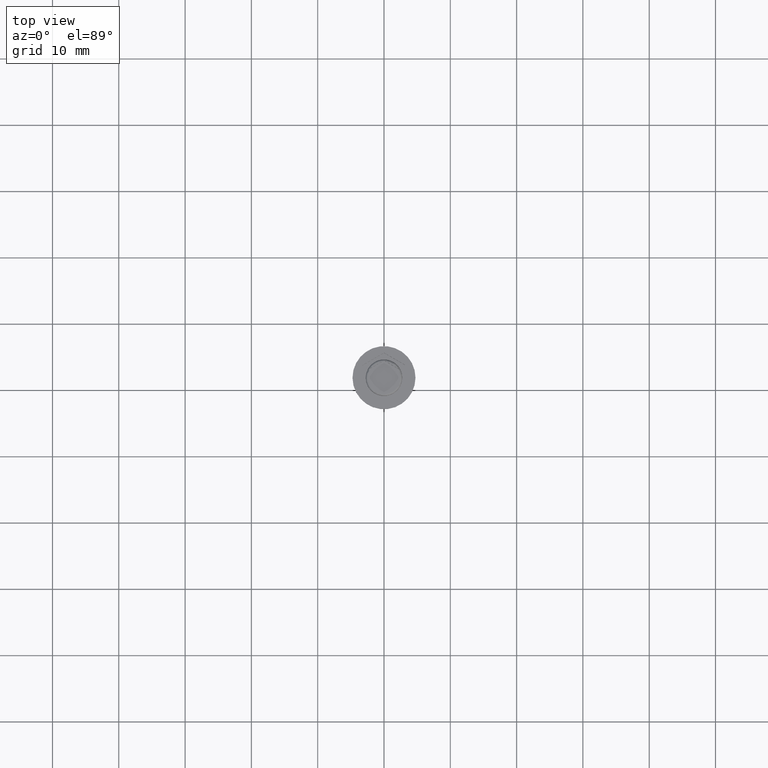
[diagram: clean part render]
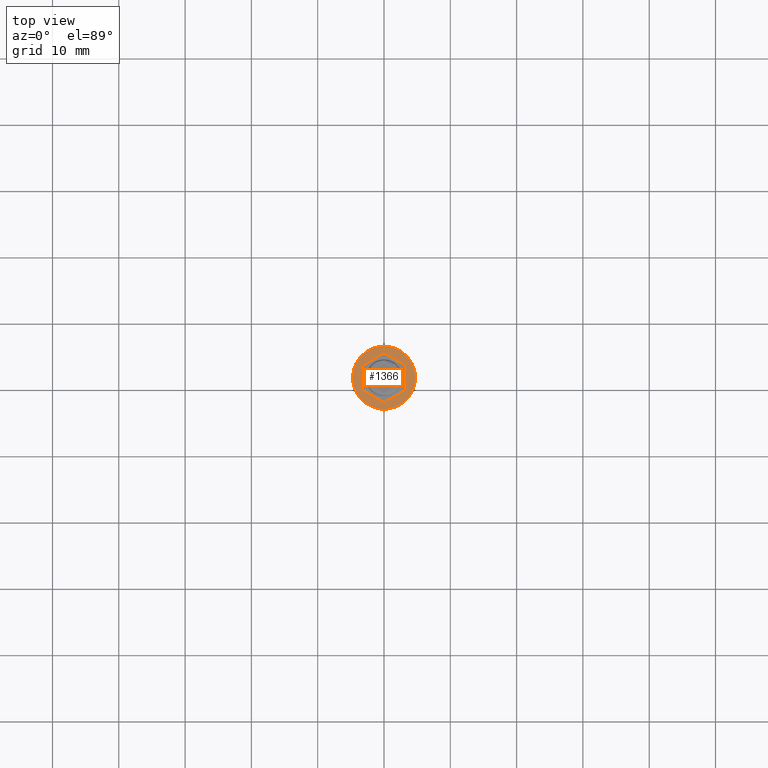
[diagram: same view with one face highlighted and labeled with its STEP entity id]
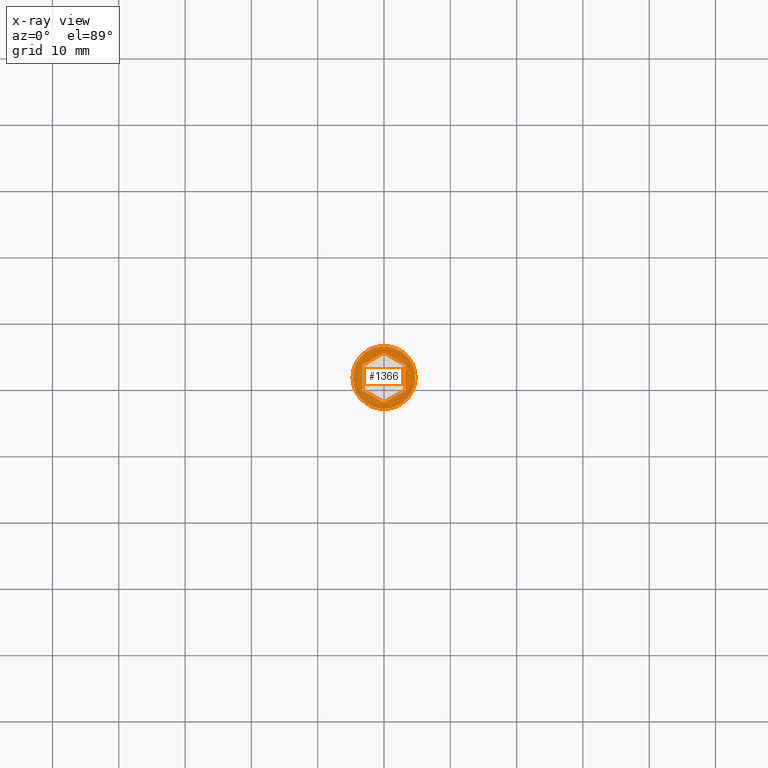
[diagram: x-ray of the same camera — body ghosted, the highlighted face saturated]
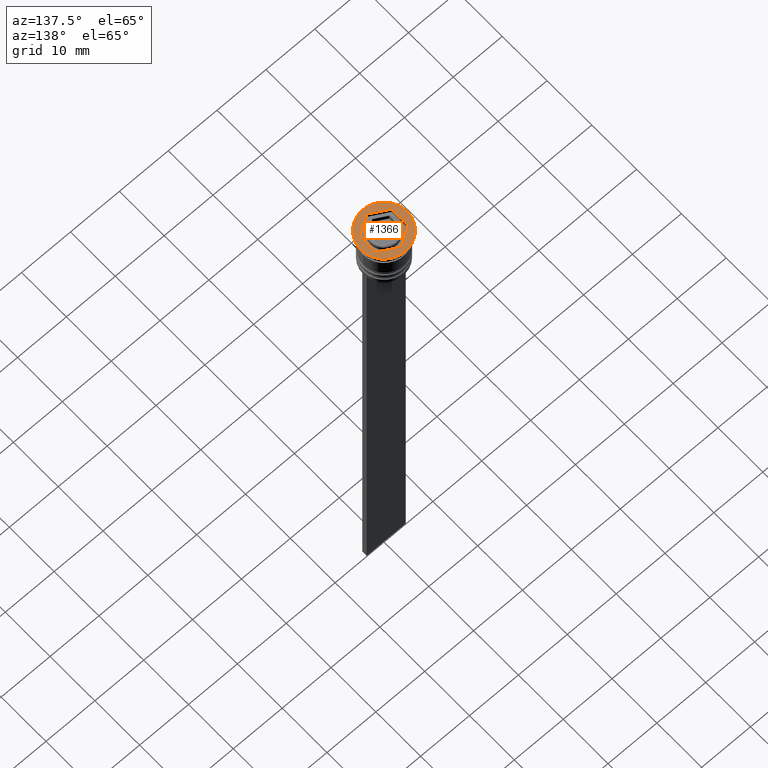
[diagram: same view with one face highlighted and labeled with its STEP entity id]
A machine part, top view. The second image highlights one B-rep face of the part: STEP entity #1366.
The next image is the same camera in x-ray: the body ghosted, the highlighted face saturated — about 0% of this face is hidden behind the body in this view.
A second angle (auxiliary view) of the same face is appended — the face is thin or edge-on in the first view.
In plain terms, the highlighted planar face has unit normal (0, -0, 1).
Its self-contained STEP definition (entity closure, byte-faithful):
#9 = CARTESIAN_POINT ( 'NONE',  ( 3.250000000000000444, -1.876388374866283515, 0.000000000000000000 ) ) ;
#13 = CARTESIAN_POINT ( 'NONE',  ( -4.750000000000000000, 5.817072295949927426E-16, 0.000000000000000000 ) ) ;
#50 = ORIENTED_EDGE ( 'NONE', *, *, #1515, .F. ) ;
#58 = ORIENTED_EDGE ( 'NONE', *, *, #1827, .T. ) ;
#105 = VECTOR ( 'NONE', #1931, 1000.000000000000114 ) ;
#120 = ORIENTED_EDGE ( 'NONE', *, *, #1431, .F. ) ;
#139 = EDGE_LOOP ( 'NONE', ( #790, #58 ) ) ;
#144 = EDGE_CURVE ( 'NONE', #2367, #193, #1368, .T. ) ;
#173 = VERTEX_POINT ( 'NONE', #2329 ) ;
#178 = EDGE_CURVE ( 'NONE', #605, #977, #969, .T. ) ;
#193 = VERTEX_POINT ( 'NONE', #9 ) ;
#262 = ORIENTED_EDGE ( 'NONE', *, *, #617, .F. ) ;
#326 = AXIS2_PLACEMENT_3D ( 'NONE', #2352, #906, #733 ) ;
#327 = VERTEX_POINT ( 'NONE', #1181 ) ;
#350 = DIRECTION ( 'NONE',  ( 0.8660254037844385966, 0.5000000000000001110, 0.000000000000000000 ) ) ;
#411 = EDGE_LOOP ( 'NONE', ( #50, #1134, #1137, #262, #1971, #120 ) ) ;
#443 = EDGE_CURVE ( 'NONE', #193, #919, #1704, .T. ) ;
#605 = VERTEX_POINT ( 'NONE', #2152 ) ;
#617 = EDGE_CURVE ( 'NONE', #1348, #2367, #1469, .T. ) ;
#680 = CARTESIAN_POINT ( 'NONE',  ( 0.000000000000000000, 0.000000000000000000, 0.000000000000000000 ) ) ;
#705 = DIRECTION ( 'NONE',  ( 1.000000000000000000, 0.000000000000000000, 0.000000000000000000 ) ) ;
#733 = DIRECTION ( 'NONE',  ( 1.000000000000000000, 0.000000000000000000, 0.000000000000000000 ) ) ;
#790 = ORIENTED_EDGE ( 'NONE', *, *, #178, .T. ) ;
#808 = VECTOR ( 'NONE', #1203, 1000.000000000000000 ) ;
#826 = EDGE_CURVE ( 'NONE', #173, #1348, #1600, .T. ) ;
#829 = AXIS2_PLACEMENT_3D ( 'NONE', #2371, #2385, #1846 ) ;
#906 = DIRECTION ( 'NONE',  ( -0.000000000000000000, -0.000000000000000000, 1.000000000000000000 ) ) ;
#919 = VERTEX_POINT ( 'NONE', #1474 ) ;
#962 = DIRECTION ( 'NONE',  ( -0.8660254037844388186, 0.4999999999999997224, 0.000000000000000000 ) ) ;
#964 = DIRECTION ( 'NONE',  ( 2.311253228826398661E-16, 1.000000000000000000, 0.000000000000000000 ) ) ;
#969 = CIRCLE ( 'NONE', #1259, 4.750000000000000000 ) ;
#977 = VERTEX_POINT ( 'NONE', #13 ) ;
#985 = CARTESIAN_POINT ( 'NONE',  ( 3.250000000000000444, -1.876388374866283515, 0.000000000000000000 ) ) ;
#996 = LINE ( 'NONE', #1887, #2216 ) ;
#998 = CIRCLE ( 'NONE', #326, 4.750000000000000000 ) ;
#1008 = LINE ( 'NONE', #2264, #1446 ) ;
#1134 = ORIENTED_EDGE ( 'NONE', *, *, #443, .F. ) ;
#1137 = ORIENTED_EDGE ( 'NONE', *, *, #144, .F. ) ;
#1181 = CARTESIAN_POINT ( 'NONE',  ( 0.000000000000000000, 3.752776749732567030, 0.000000000000000000 ) ) ;
#1203 = DIRECTION ( 'NONE',  ( 0.000000000000000000, -1.000000000000000000, 0.000000000000000000 ) ) ;
#1240 = CARTESIAN_POINT ( 'NONE',  ( -3.250000000000000444, -1.876388374866284625, 0.000000000000000000 ) ) ;
#1259 = AXIS2_PLACEMENT_3D ( 'NONE', #680, #2356, #705 ) ;
#1262 = FACE_BOUND ( 'NONE', #411, .T. ) ;
#1320 = DIRECTION ( 'NONE',  ( -0.8660254037844385966, -0.5000000000000001110, 0.000000000000000000 ) ) ;
#1340 = VECTOR ( 'NONE', #964, 1000.000000000000000 ) ;
#1348 = VERTEX_POINT ( 'NONE', #1830 ) ;
#1366 = ADVANCED_FACE ( 'NONE', ( #1262, #2002 ), #2198, .T. ) ;
#1368 = LINE ( 'NONE', #2106, #1375 ) ;
#1375 = VECTOR ( 'NONE', #350, 1000.000000000000000 ) ;
#1406 = CARTESIAN_POINT ( 'NONE',  ( -3.250000000000000444, 1.876388374866282627, 0.000000000000000000 ) ) ;
#1431 = EDGE_CURVE ( 'NONE', #327, #173, #1008, .T. ) ;
#1446 = VECTOR ( 'NONE', #1320, 1000.000000000000000 ) ;
#1469 = LINE ( 'NONE', #1240, #105 ) ;
#1474 = CARTESIAN_POINT ( 'NONE',  ( 3.250000000000001332, 1.876388374866284181, 0.000000000000000000 ) ) ;
#1515 = EDGE_CURVE ( 'NONE', #919, #327, #996, .T. ) ;
#1600 = LINE ( 'NONE', #1406, #808 ) ;
#1704 = LINE ( 'NONE', #985, #1340 ) ;
#1827 = EDGE_CURVE ( 'NONE', #977, #605, #998, .T. ) ;
#1830 = CARTESIAN_POINT ( 'NONE',  ( -3.250000000000000444, -1.876388374866284625, 0.000000000000000000 ) ) ;
#1846 = DIRECTION ( 'NONE',  ( 1.000000000000000000, 0.000000000000000000, 0.000000000000000000 ) ) ;
#1864 = CARTESIAN_POINT ( 'NONE',  ( -2.112280747572084180E-16, -3.752776749732567918, 0.000000000000000000 ) ) ;
#1887 = CARTESIAN_POINT ( 'NONE',  ( 3.250000000000001332, 1.876388374866284181, 0.000000000000000000 ) ) ;
#1931 = DIRECTION ( 'NONE',  ( 0.8660254037844387076, -0.4999999999999998890, 0.000000000000000000 ) ) ;
#1971 = ORIENTED_EDGE ( 'NONE', *, *, #826, .F. ) ;
#2002 = FACE_OUTER_BOUND ( 'NONE', #139, .T. ) ;
#2106 = CARTESIAN_POINT ( 'NONE',  ( -2.112280747572084180E-16, -3.752776749732567918, 0.000000000000000000 ) ) ;
#2152 = CARTESIAN_POINT ( 'NONE',  ( 4.750000000000000000, 0.000000000000000000, 0.000000000000000000 ) ) ;
#2198 = PLANE ( 'NONE',  #829 ) ;
#2216 = VECTOR ( 'NONE', #962, 1000.000000000000000 ) ;
#2264 = CARTESIAN_POINT ( 'NONE',  ( 0.000000000000000000, 3.752776749732567030, 0.000000000000000000 ) ) ;
#2329 = CARTESIAN_POINT ( 'NONE',  ( -3.250000000000000444, 1.876388374866282627, 0.000000000000000000 ) ) ;
#2352 = CARTESIAN_POINT ( 'NONE',  ( 0.000000000000000000, 0.000000000000000000, 0.000000000000000000 ) ) ;
#2356 = DIRECTION ( 'NONE',  ( -0.000000000000000000, -0.000000000000000000, 1.000000000000000000 ) ) ;
#2367 = VERTEX_POINT ( 'NONE', #1864 ) ;
#2371 = CARTESIAN_POINT ( 'NONE',  ( 0.000000000000000000, 0.000000000000000000, 0.000000000000000000 ) ) ;
#2385 = DIRECTION ( 'NONE',  ( 0.000000000000000000, -0.000000000000000000, 1.000000000000000000 ) ) ;